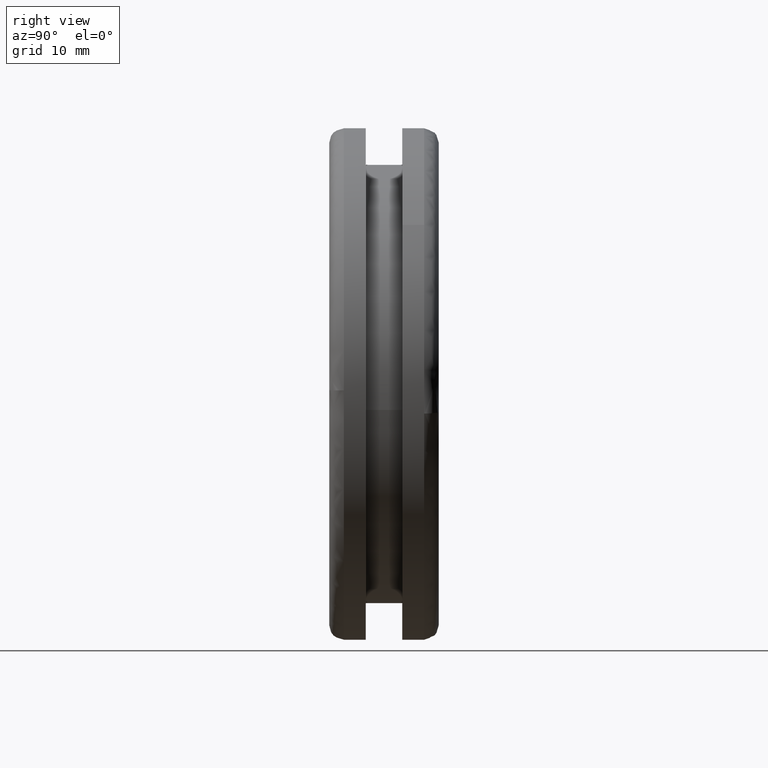
[diagram: clean part render]
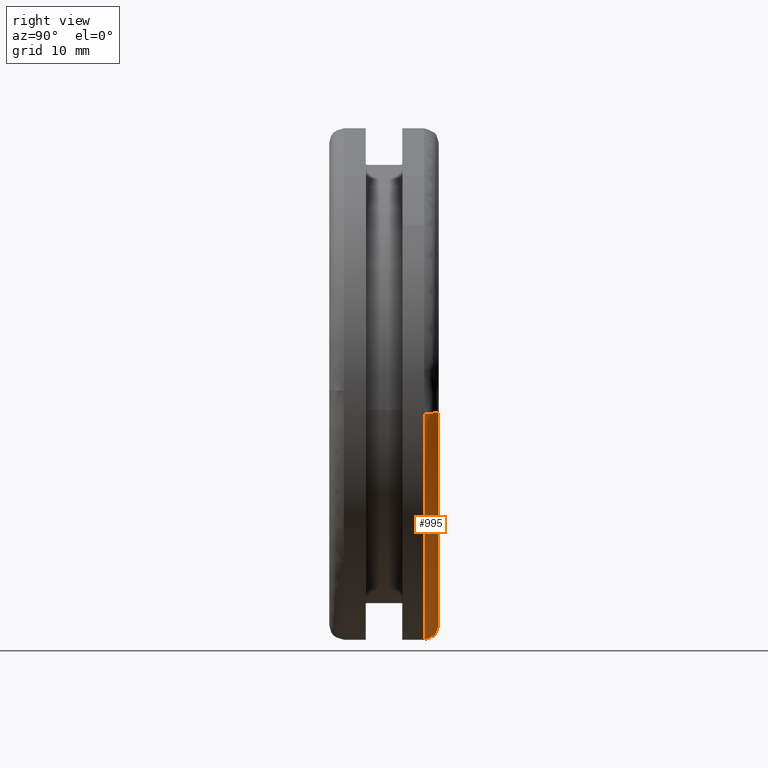
[diagram: same view with one face highlighted and labeled with its STEP entity id]
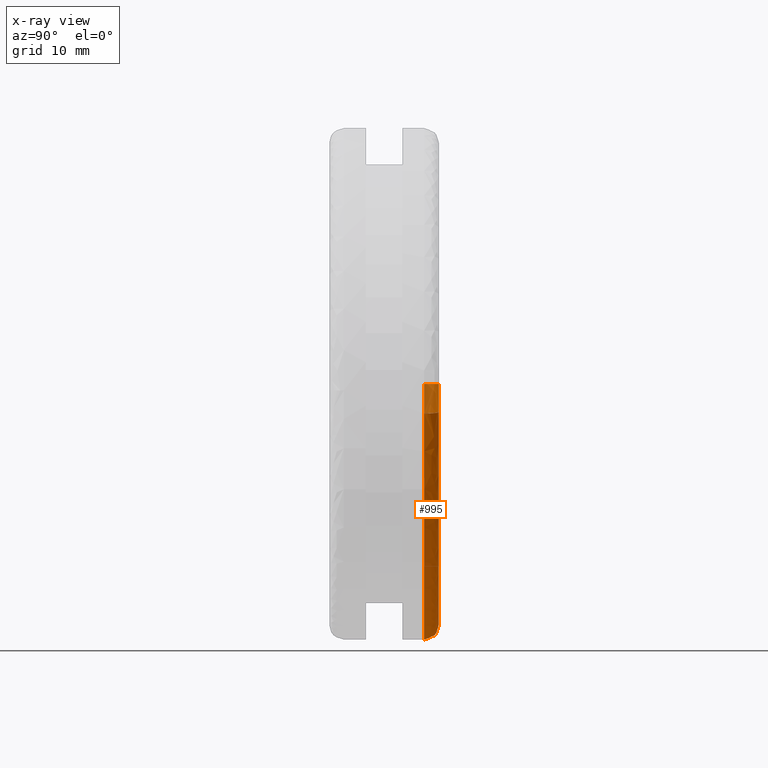
[diagram: x-ray of the same camera — body ghosted, the highlighted face saturated]
A machine part, right view. The second image highlights one B-rep face of the part: STEP entity #995.
The next image is the same camera in x-ray: the body ghosted, the highlighted face saturated — about 12% of this face is hidden behind the body in this view.
In plain terms, the highlighted face is a freeform B-spline surface patch.
Its self-contained STEP definition (entity closure, byte-faithful):
#470=CARTESIAN_POINT('',(-21.0,7.800000000051891,8.851079E-016));
#471=VERTEX_POINT('',#470);
#485=CARTESIAN_POINT('',(0.0,7.799999999999890,-21.0));
#486=VERTEX_POINT('',#485);
#487=CARTESIAN_POINT('',(-21.0,7.800000000051891,8.851079E-016));
#488=CARTESIAN_POINT('',(-21.000000000000007,7.799999999999890,-21.000000000000007));
#489=CARTESIAN_POINT('',(0.0,7.799999999999890,-21.0));
#497=(BOUNDED_CURVE()B_SPLINE_CURVE(2,(#487,#488,#489),.UNSPECIFIED.,.F.,.U.)B_SPLINE_CURVE_WITH_KNOTS((3,3),(0.750000000000000,1.0),.UNSPECIFIED.)CURVE()GEOMETRIC_REPRESENTATION_ITEM()RATIONAL_B_SPLINE_CURVE((1.0,0.707106781186547,1.0))REPRESENTATION_ITEM(''));
#498=EDGE_CURVE('',#471,#486,#497,.T.);
#500=CARTESIAN_POINT('',(20.859544414485921,7.800000000055496,-2.424748815875383));
#501=VERTEX_POINT('',#500);
#502=CARTESIAN_POINT('',(0.0,7.799999999999890,-21.0));
#503=CARTESIAN_POINT('',(18.700325717353476,7.799999999999890,-20.999999999999996));
#504=CARTESIAN_POINT('',(20.859544414485928,7.800000000055496,-2.424748815875383));
#512=(BOUNDED_CURVE()B_SPLINE_CURVE(2,(#502,#503,#504),.UNSPECIFIED.,.F.,.U.)B_SPLINE_CURVE_WITH_KNOTS((3,3),(0.0,0.229999999999889),.UNSPECIFIED.)CURVE()GEOMETRIC_REPRESENTATION_ITEM()RATIONAL_B_SPLINE_CURVE((1.0,0.730538238691753,0.956886118190442))REPRESENTATION_ITEM(''));
#513=EDGE_CURVE('',#486,#501,#512,.T.);
#873=CARTESIAN_POINT('',(19.667570450064581,8.999999999999945,-2.286191740977825));
#874=VERTEX_POINT('',#873);
#875=CARTESIAN_POINT('',(19.667570450064577,8.999999999999945,-2.286191740977825));
#876=CARTESIAN_POINT('',(20.859544414376245,8.999999995718644,-2.424748815855713));
#877=CARTESIAN_POINT('',(20.859544414485924,7.800000000055498,-2.424748815875383));
#885=(BOUNDED_CURVE()B_SPLINE_CURVE(2,(#875,#876,#877),.UNSPECIFIED.,.F.,.U.)B_SPLINE_CURVE_WITH_KNOTS((3,3),(-1.736413117379727,-0.276558718110652),.UNSPECIFIED.)CURVE()GEOMETRIC_REPRESENTATION_ITEM()RATIONAL_B_SPLINE_CURVE((0.850203275032256,0.599621899853281,0.845789311865304))REPRESENTATION_ITEM(''));
#886=EDGE_CURVE('',#874,#501,#885,.T.);
#905=CARTESIAN_POINT('',(-19.800000000222230,8.999999999999945,8.852452E-016));
#906=VERTEX_POINT('',#905);
#920=CARTESIAN_POINT('',(-19.800000000222223,8.999999999999945,8.852452E-016));
#921=CARTESIAN_POINT('',(-20.999999999895994,8.999999999555429,1.748501E-015));
#922=CARTESIAN_POINT('',(-21.0,7.800000000051891,8.851079E-016));
#930=(BOUNDED_CURVE()B_SPLINE_CURVE(2,(#920,#921,#922),.UNSPECIFIED.,.F.,.U.)B_SPLINE_CURVE_WITH_KNOTS((3,3),(-1.736413120688837,-0.276558718104464),.UNSPECIFIED.)CURVE()GEOMETRIC_REPRESENTATION_ITEM()RATIONAL_B_SPLINE_CURVE((0.888510408925024,0.626638727321098,0.883897567107215))REPRESENTATION_ITEM(''));
#931=EDGE_CURVE('',#906,#471,#930,.T.);
#938=CARTESIAN_POINT('',(-19.716778334758416,8.997110752785286,1.207265E-015));
#939=CARTESIAN_POINT('',(-19.716778334758409,8.997110752785284,-19.716778334758409));
#940=CARTESIAN_POINT('',(-2.414529E-015,8.997110752785286,-19.716778334758416));
#941=CARTESIAN_POINT('',(17.557627474146848,8.997110752785286,-19.716778334758427));
#942=CARTESIAN_POINT('',(19.584905399261086,8.997110752785288,-2.276582615235632));
#943=CARTESIAN_POINT('',(-21.093287055048425,9.092803943791667,1.291549E-015));
#944=CARTESIAN_POINT('',(-21.093287055048421,9.092803943791667,-21.093287055048421));
#945=CARTESIAN_POINT('',(-2.583097E-015,9.092803943791667,-21.093287055048425));
#946=CARTESIAN_POINT('',(18.783397065681022,9.092803943791665,-21.093287055048425));
#947=CARTESIAN_POINT('',(20.952207532014310,9.092803943791671,-2.435520133785917));
#948=CARTESIAN_POINT('',(-20.997079575721667,7.716331072732809,1.285658E-015));
#949=CARTESIAN_POINT('',(-20.997079575721664,7.716331072732808,-20.997079575721664));
#950=CARTESIAN_POINT('',(-2.571316E-015,7.716331072732809,-20.997079575721667));
#951=CARTESIAN_POINT('',(18.697725103783064,7.716331072732807,-20.997079575721664));
#952=CARTESIAN_POINT('',(20.856643523060864,7.716331072732809,-2.424411611329950));
#960=(BOUNDED_SURFACE()B_SPLINE_SURFACE(2,2,((#938,#943,#948),(#939,#944,#949),(#940,#945,#950),(#941,#946,#951),(#942,#947,#952)),.UNSPECIFIED.,.F.,.F.,.U.)B_SPLINE_SURFACE_WITH_KNOTS((3,2,3),(3,3),(0.0,34.789100521964102,66.795073002171080),(0.0,2.186845457319871),.UNSPECIFIED.)GEOMETRIC_REPRESENTATION_ITEM()RATIONAL_B_SPLINE_SURFACE(((0.915966964431935,0.599412781759712,0.910892908998245),(0.647686451892679,0.423848842712185,0.644098552887400),(0.915966964431935,0.599412781759712,0.910892908998245),(0.669148892895819,0.437893957835987,0.665442101376267),(0.876476072986156,0.573569769931916,0.871620779778728)))REPRESENTATION_ITEM('')SURFACE());
#961=ORIENTED_EDGE('',*,*,#513,.F.);
#962=ORIENTED_EDGE('',*,*,#498,.F.);
#963=ORIENTED_EDGE('',*,*,#931,.F.);
#964=CARTESIAN_POINT('',(0.0,9.0,-19.800000000000001));
#965=VERTEX_POINT('',#964);
#966=CARTESIAN_POINT('',(-19.800000000222230,8.999999999999945,8.852452E-016));
#967=CARTESIAN_POINT('',(-19.800000000000001,9.0,-19.800000000000001));
#968=CARTESIAN_POINT('',(0.0,9.0,-19.800000000000001));
#976=(BOUNDED_CURVE()B_SPLINE_CURVE(2,(#966,#967,#968),.UNSPECIFIED.,.F.,.U.)B_SPLINE_CURVE_WITH_KNOTS((3,3),(0.750000000000000,1.0),.UNSPECIFIED.)CURVE()GEOMETRIC_REPRESENTATION_ITEM()RATIONAL_B_SPLINE_CURVE((1.0,0.707106781186547,1.0))REPRESENTATION_ITEM(''));
#977=EDGE_CURVE('',#906,#965,#976,.T.);
#978=ORIENTED_EDGE('',*,*,#977,.T.);
#979=CARTESIAN_POINT('',(0.0,9.0,-19.800000000000001));
#980=CARTESIAN_POINT('',(17.631735676274946,9.0,-19.799999999999997));
#981=CARTESIAN_POINT('',(19.667570450064577,8.999999999999945,-2.286191740977825));
#989=(BOUNDED_CURVE()B_SPLINE_CURVE(2,(#979,#980,#981),.UNSPECIFIED.,.F.,.U.)B_SPLINE_CURVE_WITH_KNOTS((3,3),(0.0,0.229999999999061),.UNSPECIFIED.)CURVE()GEOMETRIC_REPRESENTATION_ITEM()RATIONAL_B_SPLINE_CURVE((1.0,0.730538238692724,0.956886118188812))REPRESENTATION_ITEM(''));
#990=EDGE_CURVE('',#965,#874,#989,.T.);
#991=ORIENTED_EDGE('',*,*,#990,.T.);
#992=ORIENTED_EDGE('',*,*,#886,.T.);
#993=EDGE_LOOP('',(#961,#962,#963,#978,#991,#992));
#994=FACE_OUTER_BOUND('',#993,.T.);
#995=ADVANCED_FACE('',(#994),#960,.T.);